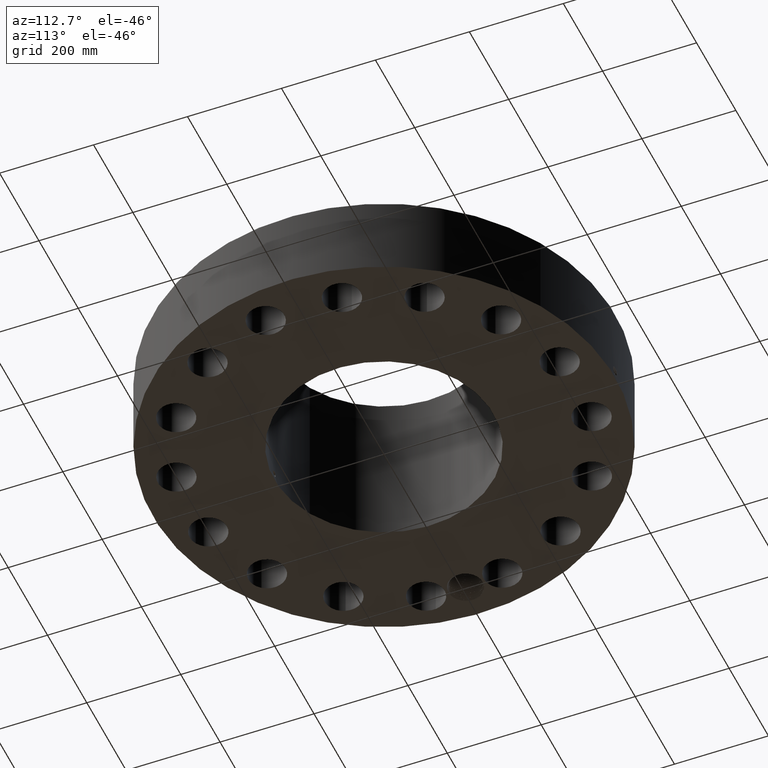
[diagram: clean part render]
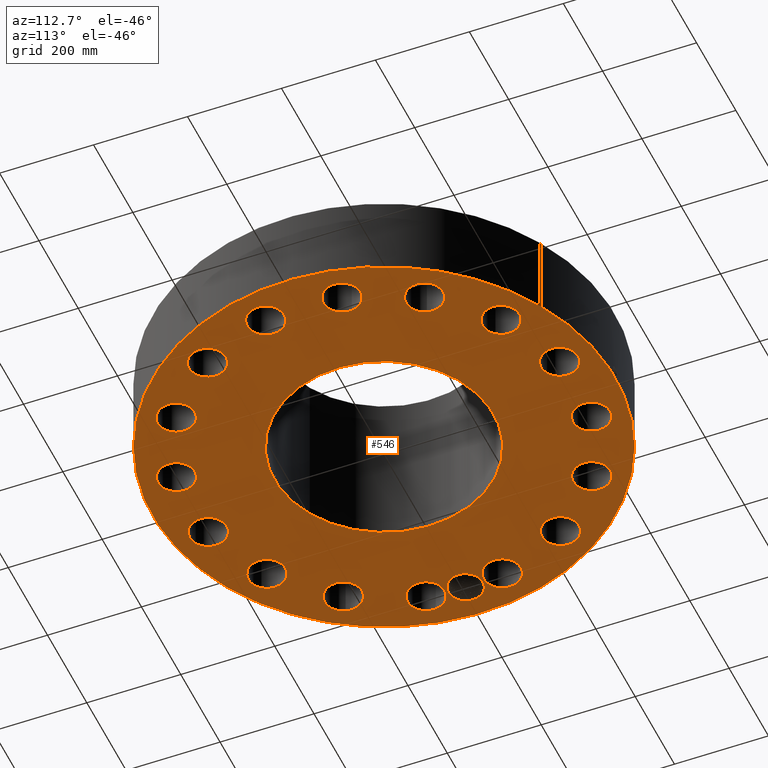
[diagram: same view with one face highlighted and labeled with its STEP entity id]
A machine part, auxiliary view. The second image highlights one B-rep face of the part: STEP entity #546.
In plain terms, the highlighted planar face has unit normal (0, 0, -1).
Its self-contained STEP definition (entity closure, byte-faithful):
#42=AXIS2_PLACEMENT_3D('Circle Axis2P3D',#40,#41,$) ;
#165=AXIS2_PLACEMENT_3D('Plane Axis2P3D',#162,#163,#164) ;
#169=AXIS2_PLACEMENT_3D('Circle Axis2P3D',#167,#168,$) ;
#178=AXIS2_PLACEMENT_3D('Circle Axis2P3D',#176,#177,$) ;
#187=AXIS2_PLACEMENT_3D('Circle Axis2P3D',#185,#186,$) ;
#242=AXIS2_PLACEMENT_3D('Circle Axis2P3D',#240,#241,$) ;
#251=AXIS2_PLACEMENT_3D('Circle Axis2P3D',#249,#250,$) ;
#260=AXIS2_PLACEMENT_3D('Circle Axis2P3D',#258,#259,$) ;
#269=AXIS2_PLACEMENT_3D('Circle Axis2P3D',#267,#268,$) ;
#278=AXIS2_PLACEMENT_3D('Circle Axis2P3D',#276,#277,$) ;
#287=AXIS2_PLACEMENT_3D('Circle Axis2P3D',#285,#286,$) ;
#296=AXIS2_PLACEMENT_3D('Circle Axis2P3D',#294,#295,$) ;
#305=AXIS2_PLACEMENT_3D('Circle Axis2P3D',#303,#304,$) ;
#314=AXIS2_PLACEMENT_3D('Circle Axis2P3D',#312,#313,$) ;
#323=AXIS2_PLACEMENT_3D('Circle Axis2P3D',#321,#322,$) ;
#332=AXIS2_PLACEMENT_3D('Circle Axis2P3D',#330,#331,$) ;
#341=AXIS2_PLACEMENT_3D('Circle Axis2P3D',#339,#340,$) ;
#350=AXIS2_PLACEMENT_3D('Circle Axis2P3D',#348,#349,$) ;
#359=AXIS2_PLACEMENT_3D('Circle Axis2P3D',#357,#358,$) ;
#368=AXIS2_PLACEMENT_3D('Circle Axis2P3D',#366,#367,$) ;
#377=AXIS2_PLACEMENT_3D('Circle Axis2P3D',#375,#376,$) ;
#386=AXIS2_PLACEMENT_3D('Circle Axis2P3D',#384,#385,$) ;
#395=AXIS2_PLACEMENT_3D('Circle Axis2P3D',#393,#394,$) ;
#404=AXIS2_PLACEMENT_3D('Circle Axis2P3D',#402,#403,$) ;
#413=AXIS2_PLACEMENT_3D('Circle Axis2P3D',#411,#412,$) ;
#422=AXIS2_PLACEMENT_3D('Circle Axis2P3D',#420,#421,$) ;
#431=AXIS2_PLACEMENT_3D('Circle Axis2P3D',#429,#430,$) ;
#440=AXIS2_PLACEMENT_3D('Circle Axis2P3D',#438,#439,$) ;
#449=AXIS2_PLACEMENT_3D('Circle Axis2P3D',#447,#448,$) ;
#458=AXIS2_PLACEMENT_3D('Circle Axis2P3D',#456,#457,$) ;
#467=AXIS2_PLACEMENT_3D('Circle Axis2P3D',#465,#466,$) ;
#476=AXIS2_PLACEMENT_3D('Circle Axis2P3D',#474,#475,$) ;
#485=AXIS2_PLACEMENT_3D('Circle Axis2P3D',#483,#484,$) ;
#494=AXIS2_PLACEMENT_3D('Circle Axis2P3D',#492,#493,$) ;
#503=AXIS2_PLACEMENT_3D('Circle Axis2P3D',#501,#502,$) ;
#512=AXIS2_PLACEMENT_3D('Circle Axis2P3D',#510,#511,$) ;
#521=AXIS2_PLACEMENT_3D('Circle Axis2P3D',#519,#520,$) ;
#530=AXIS2_PLACEMENT_3D('Circle Axis2P3D',#528,#529,$) ;
#539=AXIS2_PLACEMENT_3D('Circle Axis2P3D',#537,#538,$) ;
#40=CARTESIAN_POINT('Axis2P3D Location',(0.,0.,0.250000000001)) ;
#44=CARTESIAN_POINT('Vertex',(-9.28886981049,-17.0031621367,0.250000000001)) ;
#46=CARTESIAN_POINT('Vertex',(9.28886981049,17.0031621367,0.250000000001)) ;
#162=CARTESIAN_POINT('Axis2P3D Location',(0.,9.18800000004,0.250000000001)) ;
#167=CARTESIAN_POINT('Axis2P3D Location',(0.,0.,0.250000000001)) ;
#176=CARTESIAN_POINT('Axis2P3D Location',(-16.3750000001,-3.35689481461E-015,0.250000000001)) ;
#180=CARTESIAN_POINT('Vertex',(-17.6343309764,0.6879756479,0.250000000001)) ;
#182=CARTESIAN_POINT('Vertex',(-16.4458043404,1.43325215695,0.250000000001)) ;
#185=CARTESIAN_POINT('Axis2P3D Location',(-16.3750000001,-3.35689481461E-015,0.250000000001)) ;
#189=CARTESIAN_POINT('Vertex',(-16.4456711187,-1.43325873206,0.250000000001)) ;
#193=CARTESIAN_POINT('Control Point',(-14.8750000001,1.79034390113E-014,0.250000000001)) ;
#194=CARTESIAN_POINT('Control Point',(-14.8779729821,-0.111139216969,0.250000000001)) ;
#195=CARTESIAN_POINT('Control Point',(-14.8912430414,-0.221871243876,0.250000000001)) ;
#196=CARTESIAN_POINT('Control Point',(-14.9147542867,-0.330894082839,0.250000000001)) ;
#197=CARTESIAN_POINT('Control Point',(-14.9864707224,-0.558222215868,0.250000000001)) ;
#198=CARTESIAN_POINT('Control Point',(-15.1014919921,-0.766503010532,0.250000000001)) ;
#199=CARTESIAN_POINT('Control Point',(-15.1744135505,-0.870464801798,0.250000000001)) ;
#200=CARTESIAN_POINT('Control Point',(-15.341082541,-1.06095242921,0.250000000001)) ;
#201=CARTESIAN_POINT('Control Point',(-15.5436861788,-1.2114165069,0.250000000001)) ;
#202=CARTESIAN_POINT('Control Point',(-15.652581624,-1.27538471919,0.250000000001)) ;
#203=CARTESIAN_POINT('Control Point',(-15.867674542,-1.37228477713,0.250000000001)) ;
#204=CARTESIAN_POINT('Control Point',(-16.0969689353,-1.42404552997,0.250000000001)) ;
#205=CARTESIAN_POINT('Control Point',(-16.2057865704,-1.43797374991,0.250000000001)) ;
#206=CARTESIAN_POINT('Control Point',(-16.3195719452,-1.44166567163,0.250000000001)) ;
#207=CARTESIAN_POINT('Control Point',(-16.4325377964,-1.43422473145,0.250000000001)) ;
#208=CARTESIAN_POINT('Control Point',(-16.4369170054,-1.43391945653,0.250000000001)) ;
#209=CARTESIAN_POINT('Control Point',(-16.4412948084,-1.43359745424,0.250000000001)) ;
#210=CARTESIAN_POINT('Control Point',(-16.4456711187,-1.43325873206,0.250000000001)) ;
#211=CARTESIAN_POINT('Vertex',(-14.8750000001,1.23086143203E-014,0.250000000001)) ;
#215=CARTESIAN_POINT('Control Point',(-14.8750000001,1.34275792585E-014,0.250000000001)) ;
#216=CARTESIAN_POINT('Control Point',(-14.8779726193,0.111125655177,0.250000000001)) ;
#217=CARTESIAN_POINT('Control Point',(-14.8912398337,0.221844287315,0.250000000001)) ;
#218=CARTESIAN_POINT('Control Point',(-14.9147510051,0.330866599483,0.250000000001)) ;
#219=CARTESIAN_POINT('Control Point',(-14.986461272,0.558170902643,0.250000000001)) ;
#220=CARTESIAN_POINT('Control Point',(-15.1015006942,0.766496366641,0.250000000001)) ;
#221=CARTESIAN_POINT('Control Point',(-15.1744292629,0.870481391352,0.250000000001)) ;
#222=CARTESIAN_POINT('Control Point',(-15.3410983687,1.06097529546,0.250000000001)) ;
#223=CARTESIAN_POINT('Control Point',(-15.5437588771,1.21146597354,0.250000000001)) ;
#224=CARTESIAN_POINT('Control Point',(-15.6526615711,1.27542552468,0.250000000001)) ;
#225=CARTESIAN_POINT('Control Point',(-15.8248037619,1.35294884624,0.250000000001)) ;
#226=CARTESIAN_POINT('Control Point',(-16.0060078167,1.40156658159,0.250000000001)) ;
#227=CARTESIAN_POINT('Control Point',(-16.0671678636,1.41448541509,0.250000000001)) ;
#228=CARTESIAN_POINT('Control Point',(-16.1795021956,1.43194044135,0.250000000001)) ;
#229=CARTESIAN_POINT('Control Point',(-16.2927880376,1.4382810014,0.250000000001)) ;
#230=CARTESIAN_POINT('Control Point',(-16.3439172088,1.43886930394,0.250000000001)) ;
#231=CARTESIAN_POINT('Control Point',(-16.3949674375,1.43718861751,0.250000000001)) ;
#232=CARTESIAN_POINT('Control Point',(-16.4458043404,1.43325215695,0.250000000001)) ;
#240=CARTESIAN_POINT('Axis2P3D Location',(16.0603589667,-3.19460402303,0.250000000001)) ;
#244=CARTESIAN_POINT('Vertex',(17.4293877632,-3.94250786325,0.250000000001)) ;
#246=CARTESIAN_POINT('Vertex',(14.6913301701,-2.4467001828,0.250000000001)) ;
#249=CARTESIAN_POINT('Axis2P3D Location',(16.0603589667,-3.19460402303,0.250000000001)) ;
#258=CARTESIAN_POINT('Axis2P3D Location',(0.,0.,0.250000000001)) ;
#262=CARTESIAN_POINT('Vertex',(4.40496184871,8.06322857868,0.250000000001)) ;
#264=CARTESIAN_POINT('Vertex',(-4.40496184871,-8.06322857868,0.250000000001)) ;
#267=CARTESIAN_POINT('Axis2P3D Location',(0.,0.,0.250000000001)) ;
#276=CARTESIAN_POINT('Axis2P3D Location',(13.6153149015,-9.09746256573,0.250000000001)) ;
#280=CARTESIAN_POINT('Vertex',(12.6367076256,-7.88258487659,0.250000000001)) ;
#282=CARTESIAN_POINT('Vertex',(14.5939221774,-10.3123402549,0.250000000001)) ;
#285=CARTESIAN_POINT('Axis2P3D Location',(13.6153149015,-9.09746256573,0.250000000001)) ;
#294=CARTESIAN_POINT('Axis2P3D Location',(9.09746256573,-13.6153149015,0.250000000001)) ;
#298=CARTESIAN_POINT('Vertex',(8.65826089715,-12.1184174787,0.250000000001)) ;
#300=CARTESIAN_POINT('Vertex',(9.53666423432,-15.1122123243,0.250000000001)) ;
#303=CARTESIAN_POINT('Axis2P3D Location',(9.09746256573,-13.6153149015,0.250000000001)) ;
#312=CARTESIAN_POINT('Axis2P3D Location',(3.19460402303,-16.0603589667,0.250000000001)) ;
#316=CARTESIAN_POINT('Vertex',(3.36167243443,-14.5093308735,0.250000000001)) ;
#318=CARTESIAN_POINT('Vertex',(3.02753561163,-17.6113870599,0.250000000001)) ;
#321=CARTESIAN_POINT('Axis2P3D Location',(3.19460402303,-16.0603589667,0.250000000001)) ;
#330=CARTESIAN_POINT('Axis2P3D Location',(-3.19460402303,-16.0603589667,0.250000000001)) ;
#334=CARTESIAN_POINT('Vertex',(-2.4467001828,-14.6913301701,0.250000000001)) ;
#336=CARTESIAN_POINT('Vertex',(-3.94250786325,-17.4293877632,0.250000000001)) ;
#339=CARTESIAN_POINT('Axis2P3D Location',(-3.19460402303,-16.0603589667,0.250000000001)) ;
#348=CARTESIAN_POINT('Axis2P3D Location',(-9.09746256573,-13.6153149015,0.250000000001)) ;
#352=CARTESIAN_POINT('Vertex',(-7.88258487659,-12.6367076256,0.250000000001)) ;
#354=CARTESIAN_POINT('Vertex',(-10.3123402549,-14.5939221774,0.250000000001)) ;
#357=CARTESIAN_POINT('Axis2P3D Location',(-9.09746256573,-13.6153149015,0.250000000001)) ;
#366=CARTESIAN_POINT('Axis2P3D Location',(-13.6153149015,-9.09746256573,0.250000000001)) ;
#370=CARTESIAN_POINT('Vertex',(-12.1184174787,-8.65826089715,0.250000000001)) ;
#372=CARTESIAN_POINT('Vertex',(-15.1122123243,-9.53666423432,0.250000000001)) ;
#375=CARTESIAN_POINT('Axis2P3D Location',(-13.6153149015,-9.09746256573,0.250000000001)) ;
#384=CARTESIAN_POINT('Axis2P3D Location',(-16.0603589667,-3.19460402303,0.250000000001)) ;
#388=CARTESIAN_POINT('Vertex',(-14.5093308735,-3.36167243443,0.250000000001)) ;
#390=CARTESIAN_POINT('Vertex',(-17.6113870599,-3.02753561163,0.250000000001)) ;
#393=CARTESIAN_POINT('Axis2P3D Location',(-16.0603589667,-3.19460402303,0.250000000001)) ;
#402=CARTESIAN_POINT('Axis2P3D Location',(-16.0603589667,3.19460402303,0.250000000001)) ;
#406=CARTESIAN_POINT('Vertex',(-14.6913301701,2.4467001828,0.250000000001)) ;
#408=CARTESIAN_POINT('Vertex',(-17.4293877632,3.94250786325,0.250000000001)) ;
#411=CARTESIAN_POINT('Axis2P3D Location',(-16.0603589667,3.19460402303,0.250000000001)) ;
#420=CARTESIAN_POINT('Axis2P3D Location',(-13.6153149015,9.09746256573,0.250000000001)) ;
#424=CARTESIAN_POINT('Vertex',(-12.6367076256,7.88258487659,0.250000000001)) ;
#426=CARTESIAN_POINT('Vertex',(-14.5939221774,10.3123402549,0.250000000001)) ;
#429=CARTESIAN_POINT('Axis2P3D Location',(-13.6153149015,9.09746256573,0.250000000001)) ;
#438=CARTESIAN_POINT('Axis2P3D Location',(-9.09746256573,13.6153149015,0.250000000001)) ;
#442=CARTESIAN_POINT('Vertex',(-8.65826089715,12.1184174787,0.250000000001)) ;
#444=CARTESIAN_POINT('Vertex',(-9.53666423432,15.1122123243,0.250000000001)) ;
#447=CARTESIAN_POINT('Axis2P3D Location',(-9.09746256573,13.6153149015,0.250000000001)) ;
#456=CARTESIAN_POINT('Axis2P3D Location',(-3.19460402303,16.0603589667,0.250000000001)) ;
#460=CARTESIAN_POINT('Vertex',(-3.36167243443,14.5093308735,0.250000000001)) ;
#462=CARTESIAN_POINT('Vertex',(-3.02753561163,17.6113870599,0.250000000001)) ;
#465=CARTESIAN_POINT('Axis2P3D Location',(-3.19460402303,16.0603589667,0.250000000001)) ;
#474=CARTESIAN_POINT('Axis2P3D Location',(3.19460402303,16.0603589667,0.250000000001)) ;
#478=CARTESIAN_POINT('Vertex',(2.4467001828,14.6913301701,0.250000000001)) ;
#480=CARTESIAN_POINT('Vertex',(3.94250786325,17.4293877632,0.250000000001)) ;
#483=CARTESIAN_POINT('Axis2P3D Location',(3.19460402303,16.0603589667,0.250000000001)) ;
#492=CARTESIAN_POINT('Axis2P3D Location',(9.09746256573,13.6153149015,0.250000000001)) ;
#496=CARTESIAN_POINT('Vertex',(7.88258487659,12.6367076256,0.250000000001)) ;
#498=CARTESIAN_POINT('Vertex',(10.3123402549,14.5939221774,0.250000000001)) ;
#501=CARTESIAN_POINT('Axis2P3D Location',(9.09746256573,13.6153149015,0.250000000001)) ;
#510=CARTESIAN_POINT('Axis2P3D Location',(13.6153149015,9.09746256573,0.250000000001)) ;
#514=CARTESIAN_POINT('Vertex',(12.1184174787,8.65826089715,0.250000000001)) ;
#516=CARTESIAN_POINT('Vertex',(15.1122123243,9.53666423432,0.250000000001)) ;
#519=CARTESIAN_POINT('Axis2P3D Location',(13.6153149015,9.09746256573,0.250000000001)) ;
#528=CARTESIAN_POINT('Axis2P3D Location',(16.0603589667,3.19460402303,0.250000000001)) ;
#532=CARTESIAN_POINT('Vertex',(14.5093308735,3.36167243443,0.250000000001)) ;
#534=CARTESIAN_POINT('Vertex',(17.6113870599,3.02753561163,0.250000000001)) ;
#537=CARTESIAN_POINT('Axis2P3D Location',(16.0603589667,3.19460402303,0.250000000001)) ;
#41=DIRECTION('Axis2P3D Direction',(0.,0.,-0.0393700787402)) ;
#163=DIRECTION('Axis2P3D Direction',(0.,0.,-0.0393700787402)) ;
#164=DIRECTION('Axis2P3D XDirection',(0.0393700787402,0.,0.)) ;
#168=DIRECTION('Axis2P3D Direction',(0.,0.,-0.0393700787402)) ;
#177=DIRECTION('Axis2P3D Direction',(0.,0.,-0.0393700787402)) ;
#186=DIRECTION('Axis2P3D Direction',(0.,0.,-0.0393700787402)) ;
#241=DIRECTION('Axis2P3D Direction',(0.,0.,-0.0393700787402)) ;
#250=DIRECTION('Axis2P3D Direction',(0.,0.,-0.0393700787402)) ;
#259=DIRECTION('Axis2P3D Direction',(0.,0.,-0.0393700787402)) ;
#268=DIRECTION('Axis2P3D Direction',(0.,0.,-0.0393700787402)) ;
#277=DIRECTION('Axis2P3D Direction',(0.,0.,-0.0393700787402)) ;
#286=DIRECTION('Axis2P3D Direction',(0.,0.,-0.0393700787402)) ;
#295=DIRECTION('Axis2P3D Direction',(0.,0.,-0.0393700787402)) ;
#304=DIRECTION('Axis2P3D Direction',(0.,0.,-0.0393700787402)) ;
#313=DIRECTION('Axis2P3D Direction',(0.,0.,-0.0393700787402)) ;
#322=DIRECTION('Axis2P3D Direction',(0.,0.,-0.0393700787402)) ;
#331=DIRECTION('Axis2P3D Direction',(0.,0.,-0.0393700787402)) ;
#340=DIRECTION('Axis2P3D Direction',(0.,0.,-0.0393700787402)) ;
#349=DIRECTION('Axis2P3D Direction',(0.,0.,-0.0393700787402)) ;
#358=DIRECTION('Axis2P3D Direction',(0.,0.,-0.0393700787402)) ;
#367=DIRECTION('Axis2P3D Direction',(0.,0.,-0.0393700787402)) ;
#376=DIRECTION('Axis2P3D Direction',(0.,0.,-0.0393700787402)) ;
#385=DIRECTION('Axis2P3D Direction',(0.,0.,-0.0393700787402)) ;
#394=DIRECTION('Axis2P3D Direction',(0.,0.,-0.0393700787402)) ;
#403=DIRECTION('Axis2P3D Direction',(0.,0.,-0.0393700787402)) ;
#412=DIRECTION('Axis2P3D Direction',(0.,0.,-0.0393700787402)) ;
#421=DIRECTION('Axis2P3D Direction',(0.,0.,-0.0393700787402)) ;
#430=DIRECTION('Axis2P3D Direction',(0.,0.,-0.0393700787402)) ;
#439=DIRECTION('Axis2P3D Direction',(0.,0.,-0.0393700787402)) ;
#448=DIRECTION('Axis2P3D Direction',(0.,0.,-0.0393700787402)) ;
#457=DIRECTION('Axis2P3D Direction',(0.,0.,-0.0393700787402)) ;
#466=DIRECTION('Axis2P3D Direction',(0.,0.,-0.0393700787402)) ;
#475=DIRECTION('Axis2P3D Direction',(0.,0.,-0.0393700787402)) ;
#484=DIRECTION('Axis2P3D Direction',(0.,0.,-0.0393700787402)) ;
#493=DIRECTION('Axis2P3D Direction',(0.,0.,-0.0393700787402)) ;
#502=DIRECTION('Axis2P3D Direction',(0.,0.,-0.0393700787402)) ;
#511=DIRECTION('Axis2P3D Direction',(0.,0.,-0.0393700787402)) ;
#520=DIRECTION('Axis2P3D Direction',(0.,0.,-0.0393700787402)) ;
#529=DIRECTION('Axis2P3D Direction',(0.,0.,-0.0393700787402)) ;
#538=DIRECTION('Axis2P3D Direction',(0.,0.,-0.0393700787402)) ;
#173=ORIENTED_EDGE('',*,*,#48,.T.) ;
#174=ORIENTED_EDGE('',*,*,#171,.T.) ;
#235=ORIENTED_EDGE('',*,*,#184,.F.) ;
#236=ORIENTED_EDGE('',*,*,#191,.F.) ;
#237=ORIENTED_EDGE('',*,*,#213,.F.) ;
#238=ORIENTED_EDGE('',*,*,#233,.T.) ;
#255=ORIENTED_EDGE('',*,*,#248,.F.) ;
#256=ORIENTED_EDGE('',*,*,#253,.F.) ;
#273=ORIENTED_EDGE('',*,*,#266,.F.) ;
#274=ORIENTED_EDGE('',*,*,#271,.F.) ;
#291=ORIENTED_EDGE('',*,*,#284,.F.) ;
#292=ORIENTED_EDGE('',*,*,#289,.F.) ;
#309=ORIENTED_EDGE('',*,*,#302,.F.) ;
#310=ORIENTED_EDGE('',*,*,#307,.F.) ;
#327=ORIENTED_EDGE('',*,*,#320,.F.) ;
#328=ORIENTED_EDGE('',*,*,#325,.F.) ;
#345=ORIENTED_EDGE('',*,*,#338,.F.) ;
#346=ORIENTED_EDGE('',*,*,#343,.F.) ;
#363=ORIENTED_EDGE('',*,*,#356,.F.) ;
#364=ORIENTED_EDGE('',*,*,#361,.F.) ;
#381=ORIENTED_EDGE('',*,*,#374,.F.) ;
#382=ORIENTED_EDGE('',*,*,#379,.F.) ;
#399=ORIENTED_EDGE('',*,*,#392,.F.) ;
#400=ORIENTED_EDGE('',*,*,#397,.F.) ;
#417=ORIENTED_EDGE('',*,*,#410,.F.) ;
#418=ORIENTED_EDGE('',*,*,#415,.F.) ;
#435=ORIENTED_EDGE('',*,*,#428,.F.) ;
#436=ORIENTED_EDGE('',*,*,#433,.F.) ;
#453=ORIENTED_EDGE('',*,*,#446,.F.) ;
#454=ORIENTED_EDGE('',*,*,#451,.F.) ;
#471=ORIENTED_EDGE('',*,*,#464,.F.) ;
#472=ORIENTED_EDGE('',*,*,#469,.F.) ;
#489=ORIENTED_EDGE('',*,*,#482,.F.) ;
#490=ORIENTED_EDGE('',*,*,#487,.F.) ;
#507=ORIENTED_EDGE('',*,*,#500,.F.) ;
#508=ORIENTED_EDGE('',*,*,#505,.F.) ;
#525=ORIENTED_EDGE('',*,*,#518,.F.) ;
#526=ORIENTED_EDGE('',*,*,#523,.F.) ;
#543=ORIENTED_EDGE('',*,*,#536,.F.) ;
#544=ORIENTED_EDGE('',*,*,#541,.F.) ;
#239=FACE_BOUND('',#234,.T.) ;
#257=FACE_BOUND('',#254,.T.) ;
#275=FACE_BOUND('',#272,.T.) ;
#293=FACE_BOUND('',#290,.T.) ;
#311=FACE_BOUND('',#308,.T.) ;
#329=FACE_BOUND('',#326,.T.) ;
#347=FACE_BOUND('',#344,.T.) ;
#365=FACE_BOUND('',#362,.T.) ;
#383=FACE_BOUND('',#380,.T.) ;
#401=FACE_BOUND('',#398,.T.) ;
#419=FACE_BOUND('',#416,.T.) ;
#437=FACE_BOUND('',#434,.T.) ;
#455=FACE_BOUND('',#452,.T.) ;
#473=FACE_BOUND('',#470,.T.) ;
#491=FACE_BOUND('',#488,.T.) ;
#509=FACE_BOUND('',#506,.T.) ;
#527=FACE_BOUND('',#524,.T.) ;
#545=FACE_BOUND('',#542,.T.) ;
#546=ADVANCED_FACE('PartBody',(#175,#239,#257,#275,#293,#311,#329,#347,#365,#383,#401,#419,#437,#455,#473,#491,#509,#527,#545),#166,.T.) ;
#192=B_SPLINE_CURVE_WITH_KNOTS('',5,(#193,#194,#195,#196,#197,#198,#199,#200,#201,#202,#203,#204,#205,#206,#207,#208,#209,#210),.UNSPECIFIED.,.F.,.U.,(6,3,3,3,3,6),(0.,19.5629047939,41.9377991509,64.3216553511,83.8892948452,84.6786887938),.UNSPECIFIED.) ;
#214=B_SPLINE_CURVE_WITH_KNOTS('',5,(#215,#216,#217,#218,#219,#220,#221,#222,#223,#224,#225,#226,#227,#228,#229,#230,#231,#232),.UNSPECIFIED.,.F.,.U.,(6,3,3,3,3,6),(0.,19.5605176254,41.922962339,64.2804664947,75.4538158188,84.6261067048),.UNSPECIFIED.) ;
#43=CIRCLE('generated circle',#42,19.3750000001) ;
#170=CIRCLE('generated circle',#169,19.3750000001) ;
#179=CIRCLE('generated circle',#178,1.43500000001) ;
#188=CIRCLE('generated circle',#187,1.43500000001) ;
#243=CIRCLE('generated circle',#242,1.56000000001) ;
#252=CIRCLE('generated circle',#251,1.56000000001) ;
#261=CIRCLE('generated circle',#260,9.18800000004) ;
#270=CIRCLE('generated circle',#269,9.18800000004) ;
#279=CIRCLE('generated circle',#278,1.56000000001) ;
#288=CIRCLE('generated circle',#287,1.56000000001) ;
#297=CIRCLE('generated circle',#296,1.56000000001) ;
#306=CIRCLE('generated circle',#305,1.56000000001) ;
#315=CIRCLE('generated circle',#314,1.56000000001) ;
#324=CIRCLE('generated circle',#323,1.56000000001) ;
#333=CIRCLE('generated circle',#332,1.56000000001) ;
#342=CIRCLE('generated circle',#341,1.56000000001) ;
#351=CIRCLE('generated circle',#350,1.56000000001) ;
#360=CIRCLE('generated circle',#359,1.56000000001) ;
#369=CIRCLE('generated circle',#368,1.56000000001) ;
#378=CIRCLE('generated circle',#377,1.56000000001) ;
#387=CIRCLE('generated circle',#386,1.56000000001) ;
#396=CIRCLE('generated circle',#395,1.56000000001) ;
#405=CIRCLE('generated circle',#404,1.56000000001) ;
#414=CIRCLE('generated circle',#413,1.56000000001) ;
#423=CIRCLE('generated circle',#422,1.56000000001) ;
#432=CIRCLE('generated circle',#431,1.56000000001) ;
#441=CIRCLE('generated circle',#440,1.56000000001) ;
#450=CIRCLE('generated circle',#449,1.56000000001) ;
#459=CIRCLE('generated circle',#458,1.56000000001) ;
#468=CIRCLE('generated circle',#467,1.56000000001) ;
#477=CIRCLE('generated circle',#476,1.56000000001) ;
#486=CIRCLE('generated circle',#485,1.56000000001) ;
#495=CIRCLE('generated circle',#494,1.56000000001) ;
#504=CIRCLE('generated circle',#503,1.56000000001) ;
#513=CIRCLE('generated circle',#512,1.56000000001) ;
#522=CIRCLE('generated circle',#521,1.56000000001) ;
#531=CIRCLE('generated circle',#530,1.56000000001) ;
#540=CIRCLE('generated circle',#539,1.56000000001) ;
#48=EDGE_CURVE('',#45,#47,#43,.T.) ;
#171=EDGE_CURVE('',#47,#45,#170,.T.) ;
#184=EDGE_CURVE('',#181,#183,#179,.T.) ;
#191=EDGE_CURVE('',#190,#181,#188,.T.) ;
#213=EDGE_CURVE('',#212,#190,#192,.T.) ;
#233=EDGE_CURVE('',#212,#183,#214,.T.) ;
#248=EDGE_CURVE('',#245,#247,#243,.T.) ;
#253=EDGE_CURVE('',#247,#245,#252,.T.) ;
#266=EDGE_CURVE('',#263,#265,#261,.T.) ;
#271=EDGE_CURVE('',#265,#263,#270,.T.) ;
#284=EDGE_CURVE('',#281,#283,#279,.T.) ;
#289=EDGE_CURVE('',#283,#281,#288,.T.) ;
#302=EDGE_CURVE('',#299,#301,#297,.T.) ;
#307=EDGE_CURVE('',#301,#299,#306,.T.) ;
#320=EDGE_CURVE('',#317,#319,#315,.T.) ;
#325=EDGE_CURVE('',#319,#317,#324,.T.) ;
#338=EDGE_CURVE('',#335,#337,#333,.T.) ;
#343=EDGE_CURVE('',#337,#335,#342,.T.) ;
#356=EDGE_CURVE('',#353,#355,#351,.T.) ;
#361=EDGE_CURVE('',#355,#353,#360,.T.) ;
#374=EDGE_CURVE('',#371,#373,#369,.T.) ;
#379=EDGE_CURVE('',#373,#371,#378,.T.) ;
#392=EDGE_CURVE('',#389,#391,#387,.T.) ;
#397=EDGE_CURVE('',#391,#389,#396,.T.) ;
#410=EDGE_CURVE('',#407,#409,#405,.T.) ;
#415=EDGE_CURVE('',#409,#407,#414,.T.) ;
#428=EDGE_CURVE('',#425,#427,#423,.T.) ;
#433=EDGE_CURVE('',#427,#425,#432,.T.) ;
#446=EDGE_CURVE('',#443,#445,#441,.T.) ;
#451=EDGE_CURVE('',#445,#443,#450,.T.) ;
#464=EDGE_CURVE('',#461,#463,#459,.T.) ;
#469=EDGE_CURVE('',#463,#461,#468,.T.) ;
#482=EDGE_CURVE('',#479,#481,#477,.T.) ;
#487=EDGE_CURVE('',#481,#479,#486,.T.) ;
#500=EDGE_CURVE('',#497,#499,#495,.T.) ;
#505=EDGE_CURVE('',#499,#497,#504,.T.) ;
#518=EDGE_CURVE('',#515,#517,#513,.T.) ;
#523=EDGE_CURVE('',#517,#515,#522,.T.) ;
#536=EDGE_CURVE('',#533,#535,#531,.T.) ;
#541=EDGE_CURVE('',#535,#533,#540,.T.) ;
#172=EDGE_LOOP('',(#173,#174)) ;
#234=EDGE_LOOP('',(#235,#236,#237,#238)) ;
#254=EDGE_LOOP('',(#255,#256)) ;
#272=EDGE_LOOP('',(#273,#274)) ;
#290=EDGE_LOOP('',(#291,#292)) ;
#308=EDGE_LOOP('',(#309,#310)) ;
#326=EDGE_LOOP('',(#327,#328)) ;
#344=EDGE_LOOP('',(#345,#346)) ;
#362=EDGE_LOOP('',(#363,#364)) ;
#380=EDGE_LOOP('',(#381,#382)) ;
#398=EDGE_LOOP('',(#399,#400)) ;
#416=EDGE_LOOP('',(#417,#418)) ;
#434=EDGE_LOOP('',(#435,#436)) ;
#452=EDGE_LOOP('',(#453,#454)) ;
#470=EDGE_LOOP('',(#471,#472)) ;
#488=EDGE_LOOP('',(#489,#490)) ;
#506=EDGE_LOOP('',(#507,#508)) ;
#524=EDGE_LOOP('',(#525,#526)) ;
#542=EDGE_LOOP('',(#543,#544)) ;
#175=FACE_OUTER_BOUND('',#172,.T.) ;
#166=PLANE('',#165) ;
#45=VERTEX_POINT('',#44) ;
#47=VERTEX_POINT('',#46) ;
#181=VERTEX_POINT('',#180) ;
#183=VERTEX_POINT('',#182) ;
#190=VERTEX_POINT('',#189) ;
#212=VERTEX_POINT('',#211) ;
#245=VERTEX_POINT('',#244) ;
#247=VERTEX_POINT('',#246) ;
#263=VERTEX_POINT('',#262) ;
#265=VERTEX_POINT('',#264) ;
#281=VERTEX_POINT('',#280) ;
#283=VERTEX_POINT('',#282) ;
#299=VERTEX_POINT('',#298) ;
#301=VERTEX_POINT('',#300) ;
#317=VERTEX_POINT('',#316) ;
#319=VERTEX_POINT('',#318) ;
#335=VERTEX_POINT('',#334) ;
#337=VERTEX_POINT('',#336) ;
#353=VERTEX_POINT('',#352) ;
#355=VERTEX_POINT('',#354) ;
#371=VERTEX_POINT('',#370) ;
#373=VERTEX_POINT('',#372) ;
#389=VERTEX_POINT('',#388) ;
#391=VERTEX_POINT('',#390) ;
#407=VERTEX_POINT('',#406) ;
#409=VERTEX_POINT('',#408) ;
#425=VERTEX_POINT('',#424) ;
#427=VERTEX_POINT('',#426) ;
#443=VERTEX_POINT('',#442) ;
#445=VERTEX_POINT('',#444) ;
#461=VERTEX_POINT('',#460) ;
#463=VERTEX_POINT('',#462) ;
#479=VERTEX_POINT('',#478) ;
#481=VERTEX_POINT('',#480) ;
#497=VERTEX_POINT('',#496) ;
#499=VERTEX_POINT('',#498) ;
#515=VERTEX_POINT('',#514) ;
#517=VERTEX_POINT('',#516) ;
#533=VERTEX_POINT('',#532) ;
#535=VERTEX_POINT('',#534) ;